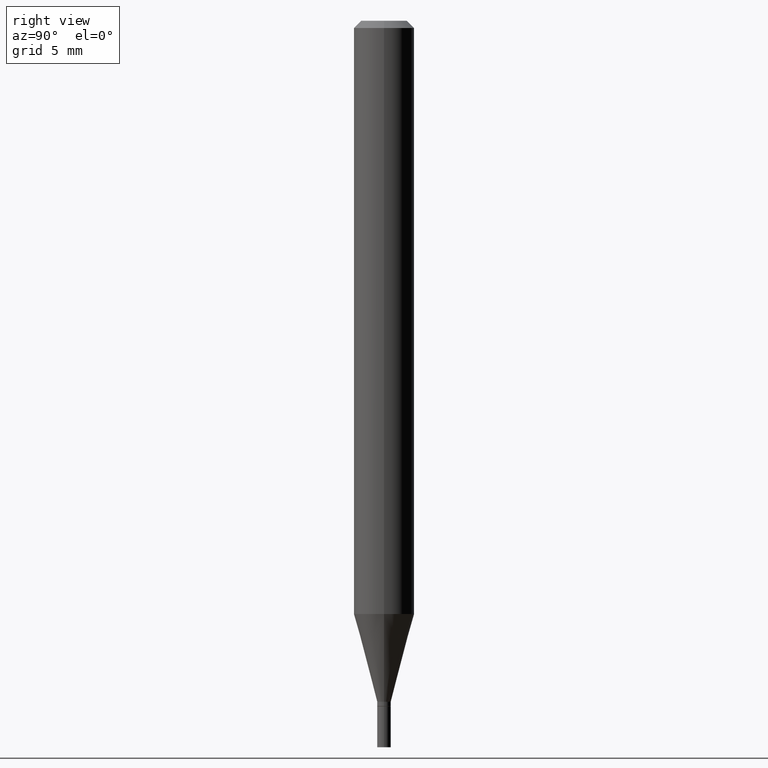
[diagram: clean part render]
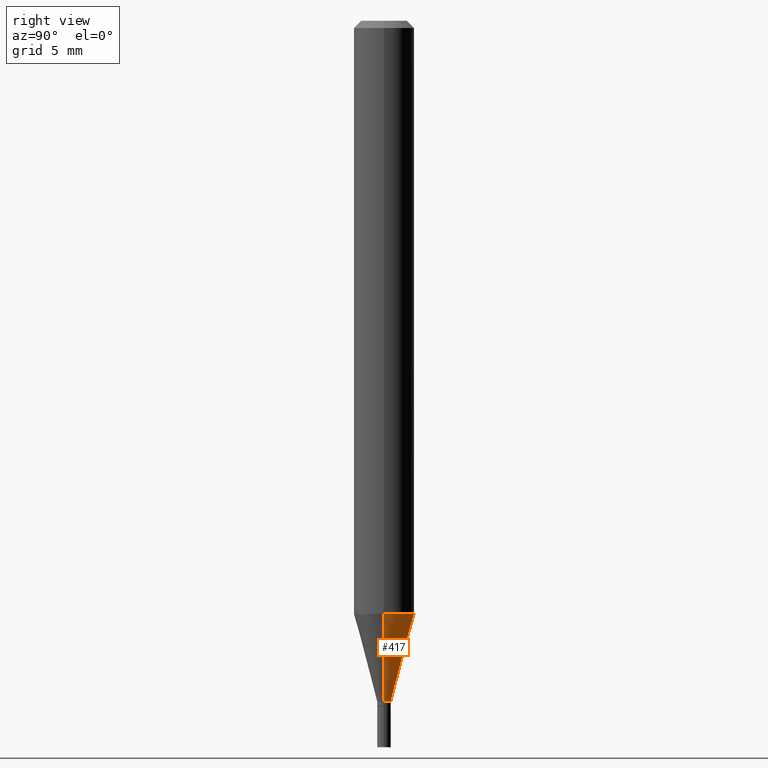
[diagram: same view with one face highlighted and labeled with its STEP entity id]
A machine part, right view. The second image highlights one B-rep face of the part: STEP entity #417.
In plain terms, the highlighted conical surface has half-angle 15 deg.
Its self-contained STEP definition (entity closure, byte-faithful):
#8 = ORIENTED_EDGE ( 'NONE', *, *, #19, .F. ) ;
#15 = DIRECTION ( 'NONE',  ( -0.2588190451025213501, 5.211531920934551042E-15, 0.9659258262890682012 ) ) ;
#19 = EDGE_CURVE ( 'NONE', #299, #322, #313, .T. ) ;
#27 = EDGE_CURVE ( 'NONE', #34, #299, #270, .T. ) ;
#34 = VERTEX_POINT ( 'NONE', #80 ) ;
#52 = CARTESIAN_POINT ( 'NONE',  ( 3.438329141496302499E-29, -4.909022762413463673E-15, -1.406000000000000139 ) ) ;
#54 = AXIS2_PLACEMENT_3D ( 'NONE', #52, #186, #296 ) ;
#57 = FACE_OUTER_BOUND ( 'NONE', #391, .T. ) ;
#76 = VERTEX_POINT ( 'NONE', #223 ) ;
#80 = CARTESIAN_POINT ( 'NONE',  ( 0.01399999999999992223, -5.006784239901070239E-15, -1.406000000000000139 ) ) ;
#81 = VECTOR ( 'NONE', #15, 39.37007874015747433 ) ;
#90 = CARTESIAN_POINT ( 'NONE',  ( 2.995688370595427801E-29, -4.277049053526764910E-15, -1.224995535832909876 ) ) ;
#114 = ORIENTED_EDGE ( 'NONE', *, *, #27, .F. ) ;
#121 = DIRECTION ( 'NONE',  ( 1.000000000000000000, -6.982962677686270655E-15, 0.000000000000000000 ) ) ;
#138 = DIRECTION ( 'NONE',  ( 0.2588190451025213501, 1.565188264969621968E-15, 0.9659258262890682012 ) ) ;
#148 = LINE ( 'NONE', #150, #81 ) ;
#150 = CARTESIAN_POINT ( 'NONE',  ( -0.01399999999999992223, -4.809546779407050347E-15, -1.406000000000000139 ) ) ;
#171 = CARTESIAN_POINT ( 'NONE',  ( -0.06250000000000000000, -3.832959843676702294E-15, -1.224995535832909876 ) ) ;
#186 = DIRECTION ( 'NONE',  ( -2.445468806185136597E-29, 3.491481338843145583E-15, 1.000000000000000000 ) ) ;
#220 = CIRCLE ( 'NONE', #350, 0.01399999999999992223 ) ;
#223 = CARTESIAN_POINT ( 'NONE',  ( -0.01399999999999992223, -4.321253311541875926E-15, -1.406000000000000139 ) ) ;
#243 = DIRECTION ( 'NONE',  ( -2.445468806185136597E-29, 3.491481338843145583E-15, 1.000000000000000000 ) ) ;
#247 = CARTESIAN_POINT ( 'NONE',  ( 3.438329141496302499E-29, -4.909022762413463673E-15, -1.406000000000000139 ) ) ;
#270 = LINE ( 'NONE', #387, #349 ) ;
#273 = AXIS2_PLACEMENT_3D ( 'NONE', #90, #458, #121 ) ;
#280 = CONICAL_SURFACE ( 'NONE', #54, 0.01399999999999992223, 0.2617993877991500740 ) ;
#285 = EDGE_CURVE ( 'NONE', #34, #76, #220, .T. ) ;
#293 = ORIENTED_EDGE ( 'NONE', *, *, #285, .T. ) ;
#296 = DIRECTION ( 'NONE',  ( 1.000000000000000000, -6.982962677686232790E-15, 0.000000000000000000 ) ) ;
#299 = VERTEX_POINT ( 'NONE', #435 ) ;
#313 = CIRCLE ( 'NONE', #273, 0.06250000000000000000 ) ;
#322 = VERTEX_POINT ( 'NONE', #171 ) ;
#349 = VECTOR ( 'NONE', #138, 39.37007874015747433 ) ;
#350 = AXIS2_PLACEMENT_3D ( 'NONE', #247, #243, #404 ) ;
#387 = CARTESIAN_POINT ( 'NONE',  ( 0.01399999999999992223, -5.006784239901070239E-15, -1.406000000000000139 ) ) ;
#391 = EDGE_LOOP ( 'NONE', ( #293, #413, #8, #114 ) ) ;
#404 = DIRECTION ( 'NONE',  ( 1.000000000000000000, -6.982962677686232790E-15, 0.000000000000000000 ) ) ;
#407 = EDGE_CURVE ( 'NONE', #76, #322, #148, .T. ) ;
#413 = ORIENTED_EDGE ( 'NONE', *, *, #407, .T. ) ;
#417 = ADVANCED_FACE ( 'NONE', ( #57 ), #280, .T. ) ;
#435 = CARTESIAN_POINT ( 'NONE',  ( 0.06250000000000000000, -4.713484220882155791E-15, -1.224995535832909876 ) ) ;
#458 = DIRECTION ( 'NONE',  ( -2.445468806185136597E-29, 3.491481338843145583E-15, 1.000000000000000000 ) ) ;